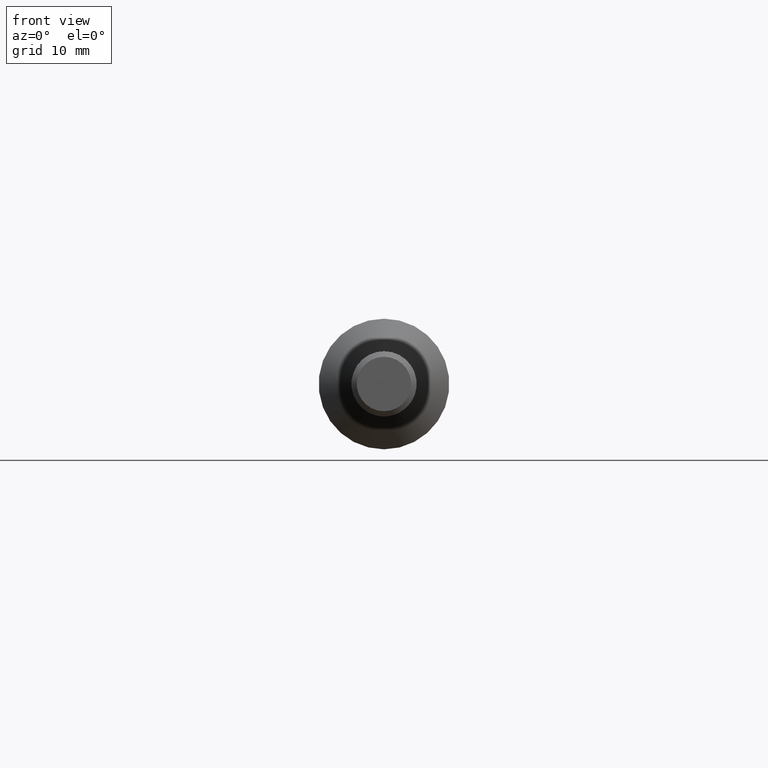
[diagram: clean part render]
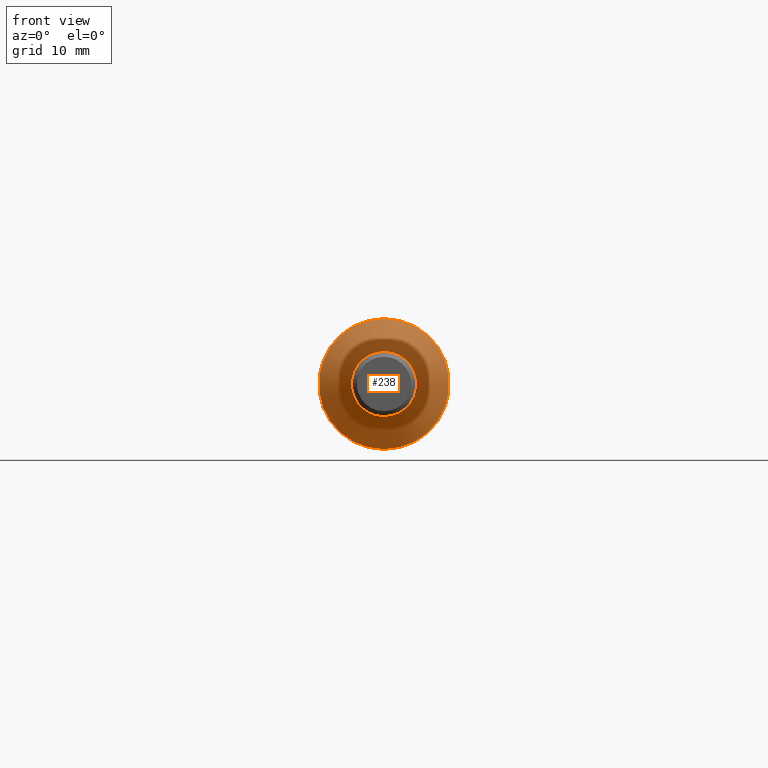
[diagram: same view with one face highlighted and labeled with its STEP entity id]
A machine part, front view. The second image highlights one B-rep face of the part: STEP entity #238.
In plain terms, the highlighted conical surface has half-angle 45 deg.
Its self-contained STEP definition (entity closure, byte-faithful):
#115 = AXIS2_PLACEMENT_3D ( 'NONE', #5581, #12535, #6766 ) ;
#238 = ADVANCED_FACE ( 'NONE', ( #10661, #5654 ), #13817, .T. ) ;
#454 = DIRECTION ( 'NONE',  ( 0.000000000000000000, 1.000000000000000000, 0.000000000000000000 ) ) ;
#610 = AXIS2_PLACEMENT_3D ( 'NONE', #646, #12502, #1802 ) ;
#646 = CARTESIAN_POINT ( 'NONE',  ( 0.000000000000000000, 32.20000000000004547, 0.000000000000000000 ) ) ;
#1069 = EDGE_CURVE ( 'NONE', #15254, #15254, #2767, .T. ) ;
#1423 = CARTESIAN_POINT ( 'NONE',  ( 0.000000000000000000, 29.20000000000000284, -2.999999999999999556 ) ) ;
#1802 = DIRECTION ( 'NONE',  ( 0.000000000000000000, 0.000000000000000000, -1.000000000000000000 ) ) ;
#2767 = CIRCLE ( 'NONE', #115, 2.999999999999999556 ) ;
#4085 = EDGE_LOOP ( 'NONE', ( #14969 ) ) ;
#4960 = AXIS2_PLACEMENT_3D ( 'NONE', #11218, #454, #13608 ) ;
#5581 = CARTESIAN_POINT ( 'NONE',  ( 0.000000000000000000, 29.20000000000000284, 0.000000000000000000 ) ) ;
#5654 = FACE_BOUND ( 'NONE', #8536, .T. ) ;
#6766 = DIRECTION ( 'NONE',  ( 0.000000000000000000, 0.000000000000000000, -1.000000000000000000 ) ) ;
#8145 = EDGE_CURVE ( 'NONE', #11529, #11529, #12207, .T. ) ;
#8536 = EDGE_LOOP ( 'NONE', ( #14445 ) ) ;
#10661 = FACE_OUTER_BOUND ( 'NONE', #4085, .T. ) ;
#11218 = CARTESIAN_POINT ( 'NONE',  ( 0.000000000000000000, 29.20000000000000284, 0.000000000000000000 ) ) ;
#11529 = VERTEX_POINT ( 'NONE', #12167 ) ;
#12167 = CARTESIAN_POINT ( 'NONE',  ( 0.000000000000000000, 32.20000000000004547, -6.000000000000000000 ) ) ;
#12207 = CIRCLE ( 'NONE', #610, 6.000000000000000000 ) ;
#12502 = DIRECTION ( 'NONE',  ( -0.000000000000000000, -1.000000000000000000, -0.000000000000000000 ) ) ;
#12535 = DIRECTION ( 'NONE',  ( -0.000000000000000000, -1.000000000000000000, -0.000000000000000000 ) ) ;
#13608 = DIRECTION ( 'NONE',  ( 0.000000000000000000, 0.000000000000000000, 1.000000000000000000 ) ) ;
#13817 = CONICAL_SURFACE ( 'NONE', #4960, 2.999999999999999556, 0.7853981633974410625 ) ;
#14445 = ORIENTED_EDGE ( 'NONE', *, *, #1069, .F. ) ;
#14969 = ORIENTED_EDGE ( 'NONE', *, *, #8145, .T. ) ;
#15254 = VERTEX_POINT ( 'NONE', #1423 ) ;